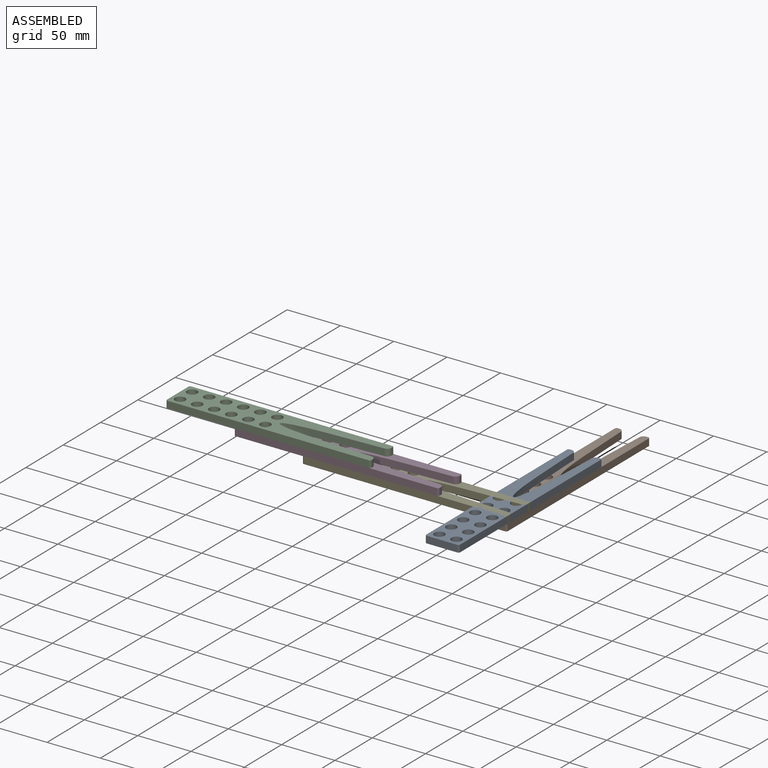
[diagram: assembled view]
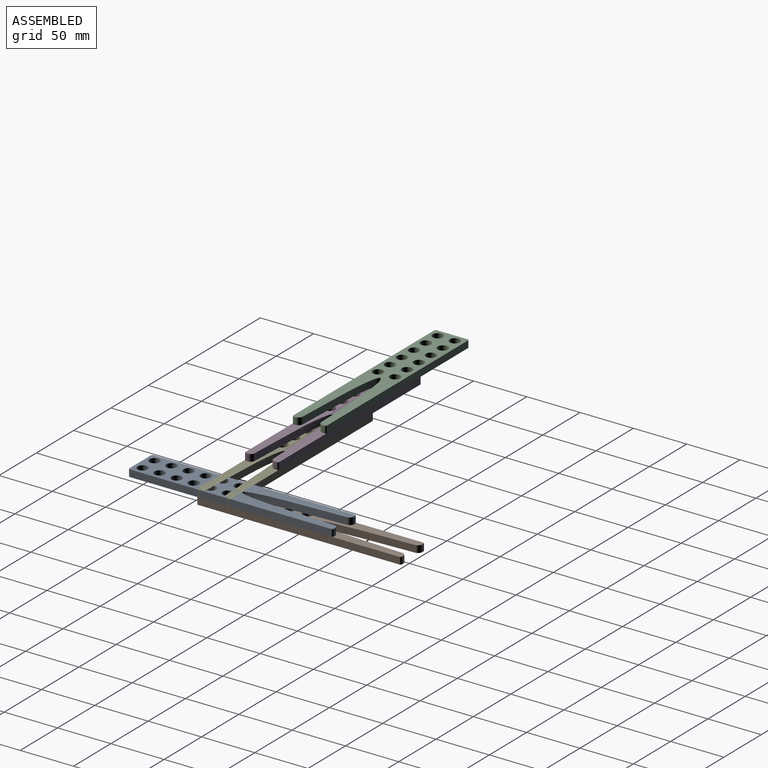
[diagram: assembled view, second angle]
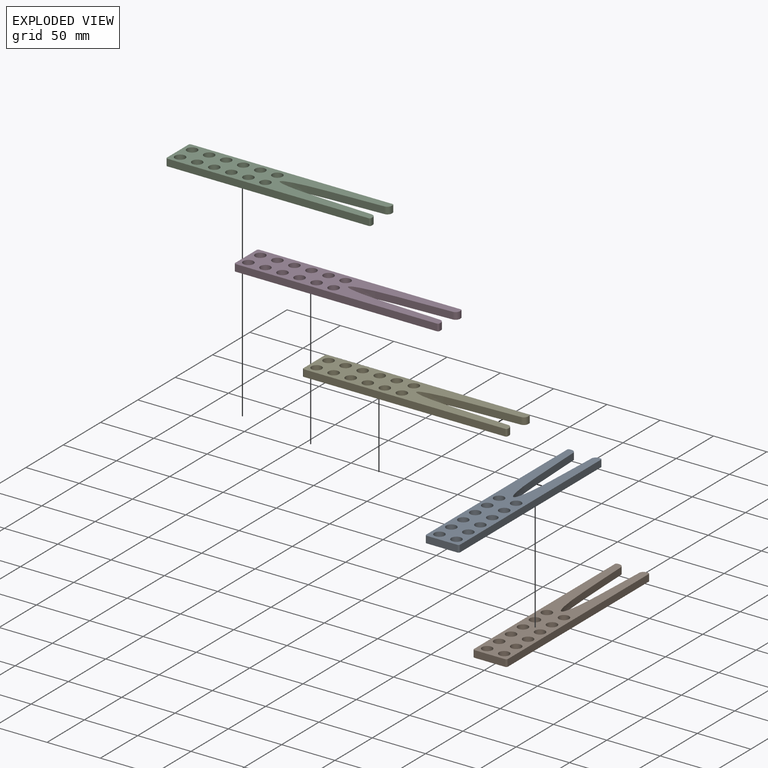
[diagram: exploded view]
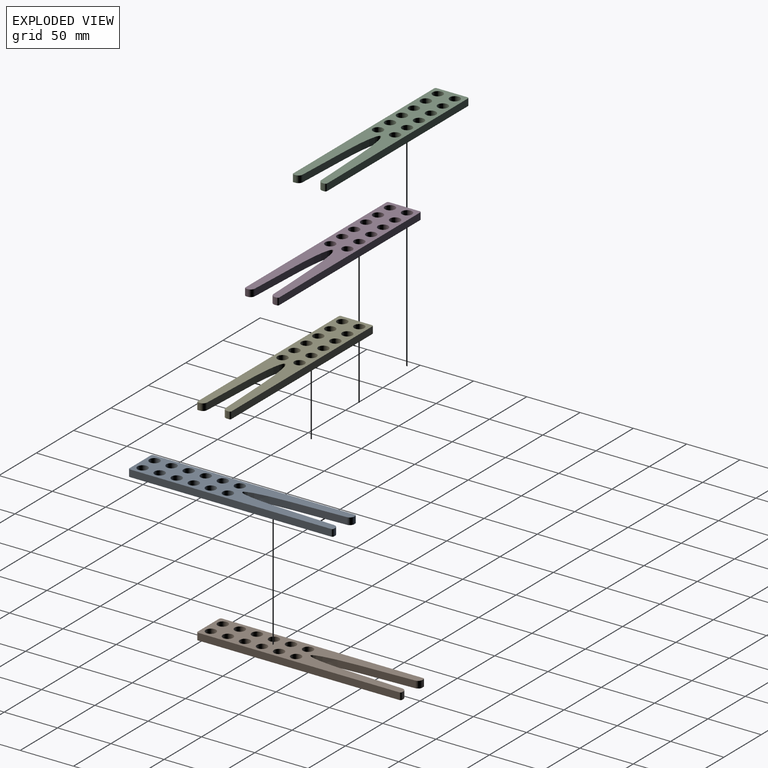
[diagram: exploded view, second angle]
ASSEMBLY  parts=5 mates=4
PART A: 28 faces, bbox 191.8x31.8x6.5 mm
  f0: cylinder r=1.5mm len=6.5mm, axis (0,0,-1), area 15.3mm2, adj f1,f25,f26,f27
  f1: plane 28.8x6.5mm, normal (-1,0,0), area 187.2mm2, adj f0,f2,f26,f27
  f2: cylinder r=1.5mm len=6.5mm, axis (0,0,-1), area 15.3mm2, adj f1,f3,f26,f27
  f3: plane 188.8x6.5mm, normal (0,-1,0), area 1227.2mm2, adj f2,f4,f26,f27
  f4: cylinder r=1.5mm len=6.5mm, axis (0,0,-1), area 15.3mm2, adj f3,f5,f26,f27
  f5: plane 6.5x1.71mm, normal (1,0,0), area 11.1mm2, adj f4,f6,f26,f27
  f6: cylinder r=4mm len=6.5mm, axis (0,0,-1), area 39.7mm2, adj f5,f7,f26,f27
  f7: plane 51.18x6.5mm, normal (0.04,1,0), area 333mm2, adj f6,f8,f26,f27
  f8: extruded ~40.88x13.06mm, area 547mm2, adj f7,f9,f26,f27
  f9: plane 51.18x6.5mm, normal (0.04,-1,0), area 333mm2, adj f8,f10,f26,f27
  f10: cylinder r=4mm len=6.5mm, axis (0,0,-1), area 39.7mm2, adj f9,f11,f26,f27
  f11: plane 6.5x1.71mm, normal (1,0,0), area 11.1mm2, adj f10,f12,f26,f27
  f12: cylinder r=1.5mm len=6.5mm, axis (0,0,-1), area 15.3mm2, adj f11,f25,f26,f27
  f13: cylinder r=4.8mm len=9.6mm, axis (0,0,-1), area 196mm2, adj f26,f27
  f14: cylinder r=4.8mm len=9.6mm, axis (0,0,-1), area 196mm2, adj f26,f27
  f15: cylinder r=4.8mm len=9.6mm, axis (0,0,-1), area 196mm2, adj f26,f27
  f16: cylinder r=4.8mm len=9.6mm, axis (0,0,-1), area 196mm2, adj f26,f27
  f17: cylinder r=4.8mm len=9.6mm, axis (0,0,-1), area 196mm2, adj f26,f27
  f18: cylinder r=4.8mm len=9.6mm, axis (0,0,-1), area 196mm2, adj f26,f27
  f19: cylinder r=4.8mm len=9.6mm, axis (0,0,-1), area 196mm2, adj f26,f27
  f20: cylinder r=4.8mm len=9.6mm, axis (0,0,-1), area 196mm2, adj f26,f27
  f21: cylinder r=4.8mm len=9.6mm, axis (0,0,-1), area 196mm2, adj f26,f27
  f22: cylinder r=4.8mm len=9.6mm, axis (0,0,-1), area 196mm2, adj f26,f27
  f23: cylinder r=4.8mm len=9.6mm, axis (0,0,-1), area 196mm2, adj f26,f27
  f24: cylinder r=4.8mm len=9.6mm, axis (0,0,-1), area 196mm2, adj f26,f27
  f25: plane 188.8x6.5mm, normal (0,1,0), area 1227.2mm2, adj f0,f12,f26,f27
  f26: plane 191.8x31.8mm, normal (0,0,1), area 3988.8mm2, adj f0,f1,f2,f3,f4,f5,f6,f7
  f27: plane 191.8x31.8mm, normal (0,0,-1), area 3988.8mm2, adj f0,f1,f2,f3,f4,f5,f6,f7
PART B: same geometry as A
PART C: same geometry as A
PART D: same geometry as A
PART E: same geometry as A
PLACE A rot(axis=(0,0,1),90deg) t=(102.83,49.38,19.62)mm
PLACE B rot(axis=(0,0,1),90deg) t=(102.83,113.38,13.12)mm
PLACE C t=(-41.17,-30.62,32.62)mm
PLACE D t=(22.83,-30.62,26.12)mm
PLACE E t=(86.83,-30.62,19.62)mm
MATE revolute D.f26 <-> C.f27  axis (0,0,1) through (-25.17,-30.62,32.62)mm
MATE fastened E.f26 <-> D.f27  axis (0,0,1) through (38.83,-30.62,26.12)mm
MATE fastened E.f27 <-> B.f26  axis (0,0,1) through (102.83,-30.62,19.62)mm
MATE fastened B.f26 <-> A.f27  axis (0,0,1) through (102.83,65.38,19.62)mm
